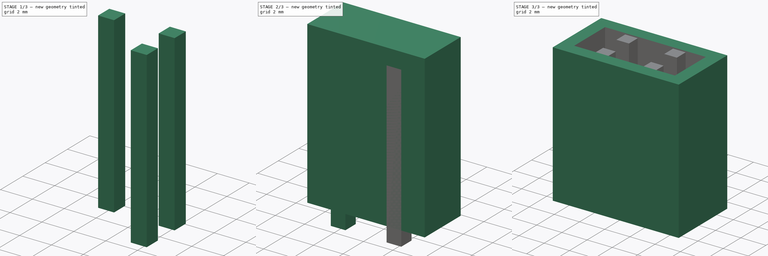
[diagram: build sequence overview — one tinted view per stage of 3, left to right]
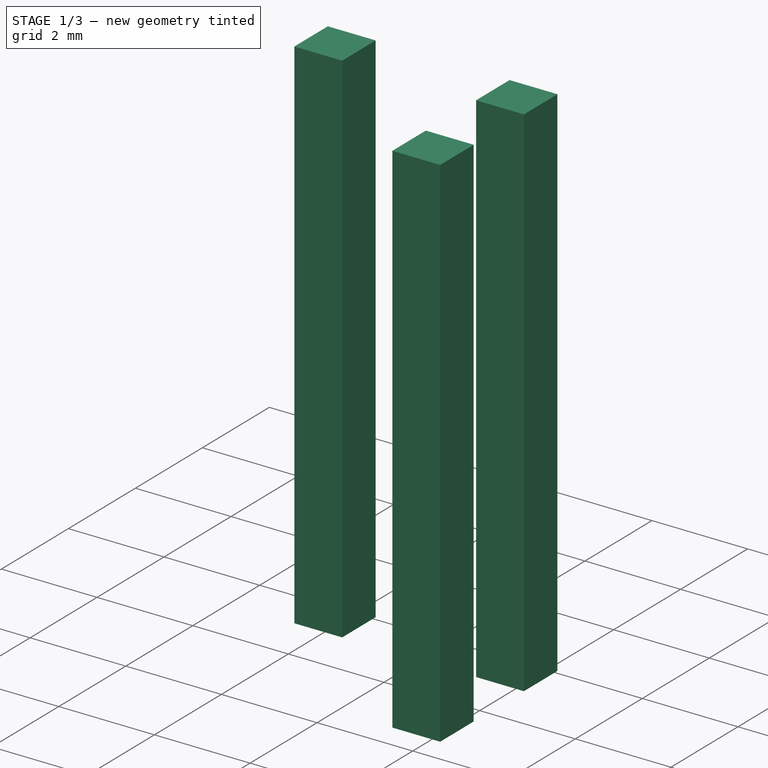
[diagram: stage 1 of 3 — iso view after this stage's code; geometry added in this stage tinted green]
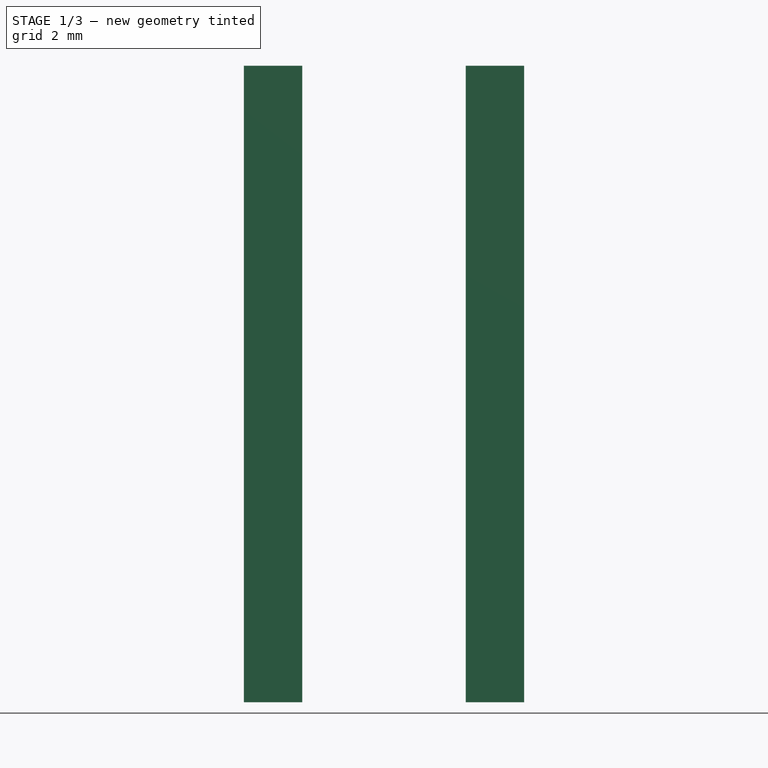
[diagram: stage 1 of 3 — front view after this stage's code; geometry added in this stage tinted green]
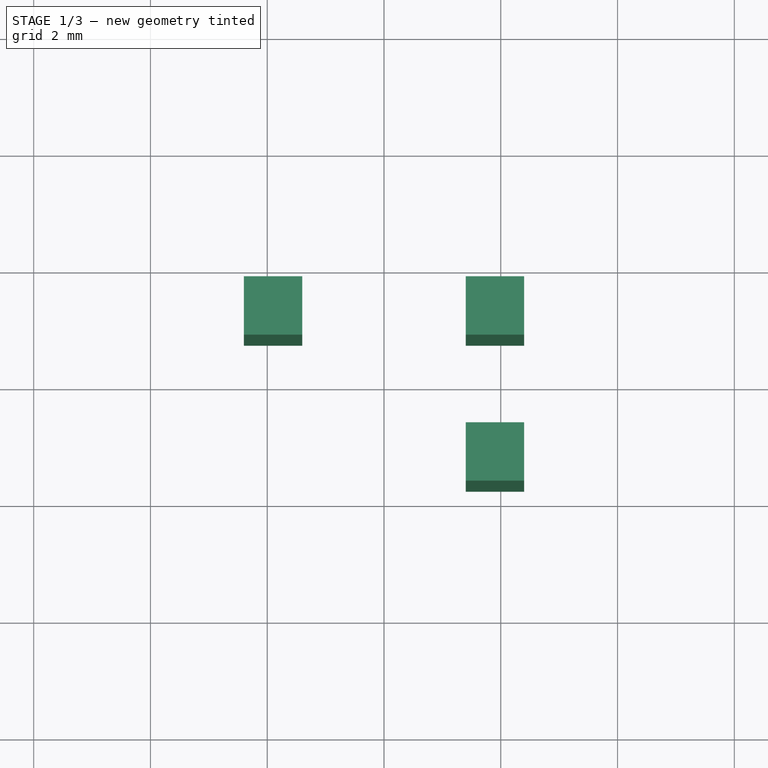
[diagram: stage 1 of 3 — top view after this stage's code; geometry added in this stage tinted green]
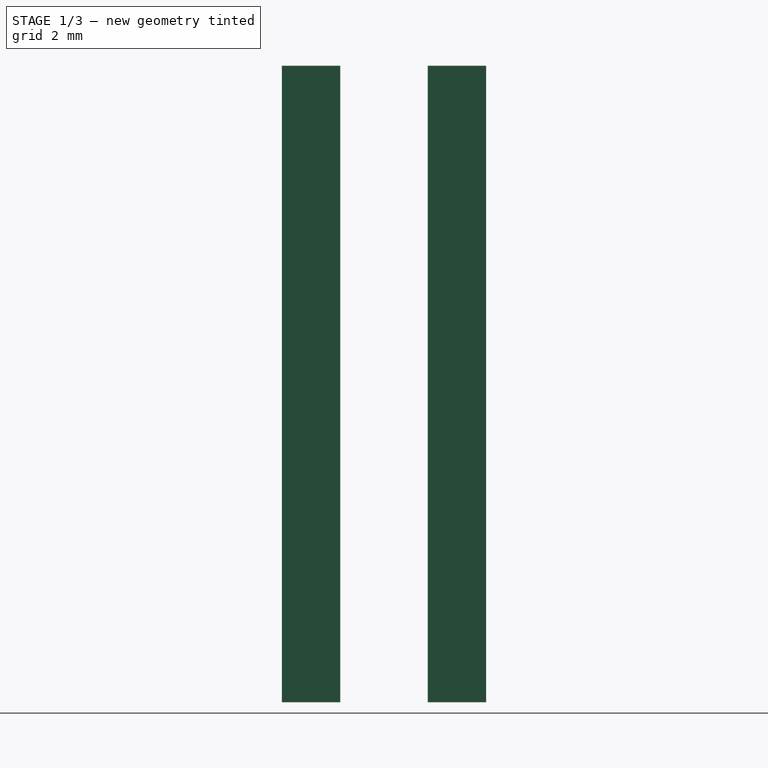
[diagram: stage 1 of 3 — right view after this stage's code; geometry added in this stage tinted green]
FCSTD DOCUMENT  (FreeCAD 0.19R24366 (Git))
Label: S1-94_button
License: All rights reserved
LicenseURL: http://en.wikipedia.org/wiki/All_rights_reserved
objects: Sketcher::SketchObject×6, PartDesign::Pad×6, PartDesign::Body×6, Part::Cut×1, Part::MultiFuse×1
note: 26 computed .brp shape members not serialized (recipe doc carries the construction recipe); baked Part::Feature solids carry a one-line shape summary decoded from their .brp

FEATURE [PartDesign::Body] Body003
  Group = -> [Sketch004,Pad003]
  Origin = -> Origin003
  Tip = -> Pad003
FEATURE [Sketcher::SketchObject] Sketch005
  FullyConstrained = true
  MapMode = 5
  Support = -> [XY_Plane004]
  sketch-geometry (4):
    g0: LineSegment StartX=1.4 StartY=1.75 StartZ=0 EndX=2.4 EndY=1.75 EndZ=0
    g1: LineSegment StartX=2.4 StartY=1.75 StartZ=0 EndX=2.4 EndY=0.75 EndZ=0
    g2: LineSegment StartX=2.4 StartY=0.75 StartZ=0 EndX=1.4 EndY=0.75 EndZ=0
    g3: LineSegment StartX=1.4 StartY=0.75 StartZ=0 EndX=1.4 EndY=1.75 EndZ=0
  constraints (12):
    c: Coincident(g0,g1)
    c: Coincident(g1,g2)
    c: Coincident(g2,g3)
    c: Coincident(g3,g0)
    c: Horizontal(g0)
    c: Horizontal(g2)
    c: Vertical(g1)
    c: Vertical(g3)
    c: Distance(g0) = 1
    c: Distance(g1) = 1
    c: DistanceX(g-2,g0) = 1.4
    c: DistanceY(g-1,g2) = 0.75
FEATURE [PartDesign::Pad] Pad004
  Direction = (1,1,1)
  Length = 10.9
  Length2 = 100
  Profile = -> Sketch005
  Type = 0
FEATURE [PartDesign::Body] Body004
  Group = -> [Sketch005,Pad004]
  Origin = -> Origin004
  Tip = -> Pad004
FEATURE [Sketcher::SketchObject] Sketch006
  FullyConstrained = true
  MapMode = 5
  Support = -> [XY_Plane005]
  sketch-geometry (4):
    g0: LineSegment StartX=1.4 StartY=-0.75 StartZ=0 EndX=2.4 EndY=-0.75 EndZ=0
    g1: LineSegment StartX=2.4 StartY=-0.75 StartZ=0 EndX=2.4 EndY=-1.75 EndZ=0
    g2: LineSegment StartX=2.4 StartY=-1.75 StartZ=0 EndX=1.4 EndY=-1.75 EndZ=0
    g3: LineSegment StartX=1.4 StartY=-1.75 StartZ=0 EndX=1.4 EndY=-0.75 EndZ=0
  constraints (12):
    c: Coincident(g0,g1)
    c: Coincident(g1,g2)
    c: Coincident(g2,g3)
    c: Coincident(g3,g0)
    c: Horizontal(g0)
    c: Horizontal(g2)
    c: Vertical(g1)
    c: Vertical(g3)
    c: Distance(g0) = 1
    c: Distance(g1) = 1
    c: DistanceY(g-1,g0) = -0.75
    c: DistanceX(g-2,g2) = 1.4
FEATURE [PartDesign::Pad] Pad005
  Direction = (1,1,1)
  Length = 10.9
  Length2 = 100
  Profile = -> Sketch006
  Type = 0
FEATURE [PartDesign::Body] Body005
  Group = -> [Sketch006,Pad005]
  Origin = -> Origin005
  Tip = -> Pad005
FEATURE [Sketcher::SketchObject] Sketch003
  FullyConstrained = true
  MapMode = 5
  Support = -> [XY_Plane002]
  sketch-geometry (4):
    g0: LineSegment StartX=-2.4 StartY=1.75 StartZ=0 EndX=-1.4 EndY=1.75 EndZ=0
    g1: LineSegment StartX=-1.4 StartY=1.75 StartZ=0 EndX=-1.4 EndY=0.75 EndZ=0
    g2: LineSegment StartX=-1.4 StartY=0.75 StartZ=0 EndX=-2.4 EndY=0.75 EndZ=0
    g3: LineSegment StartX=-2.4 StartY=0.75 StartZ=0 EndX=-2.4 EndY=1.75 EndZ=0
  constraints (12):
    c: Coincident(g0,g1)
    c: Coincident(g1,g2)
    c: Coincident(g2,g3)
    c: Coincident(g3,g0)
    c: Horizontal(g0)
    c: Horizontal(g2)
    c: Vertical(g1)
    c: Vertical(g3)
    c: Distance(g0) = 1
    c: Distance(g1) = 1
    c: DistanceX(g-2,g0) = -1.4
    c: DistanceY(g-1,g1) = 0.75
FEATURE [PartDesign::Pad] Pad002
  Direction = (1,1,1)
  Length = 10.9
  Length2 = 100
  Profile = -> Sketch003
  Type = 0
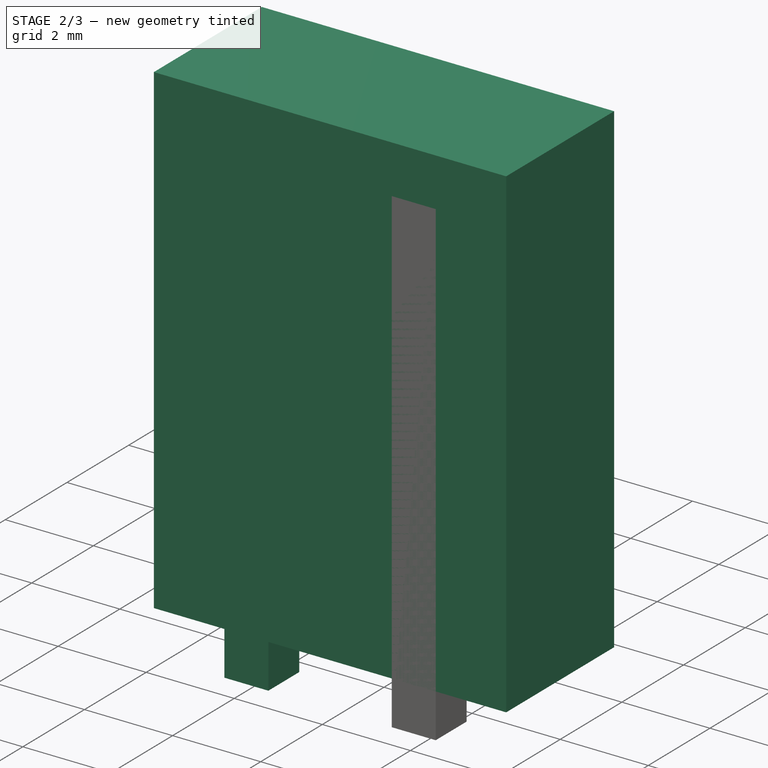
[diagram: stage 2 of 3 — iso view after this stage's code; geometry added in this stage tinted green]
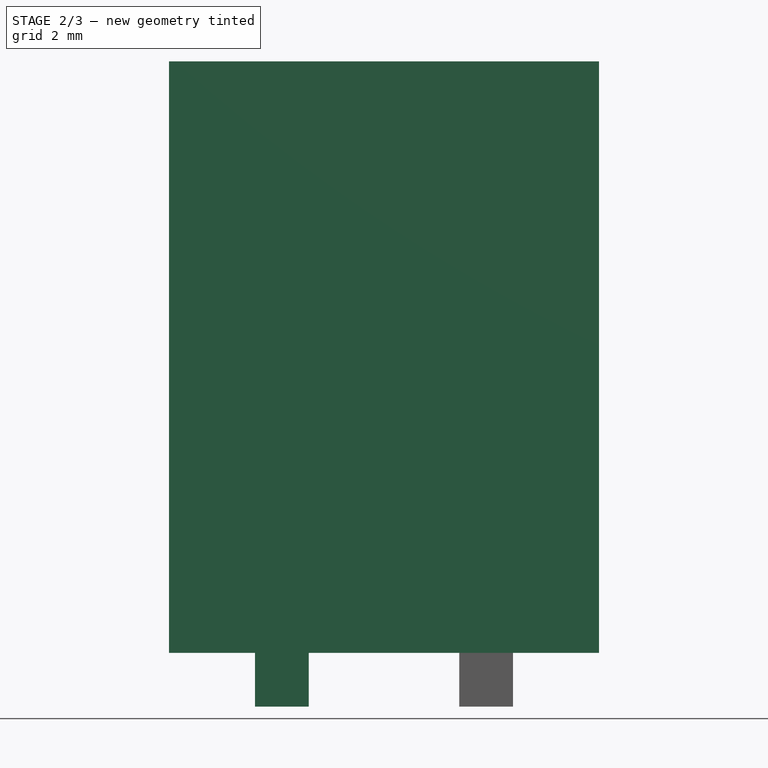
[diagram: stage 2 of 3 — front view after this stage's code; geometry added in this stage tinted green]
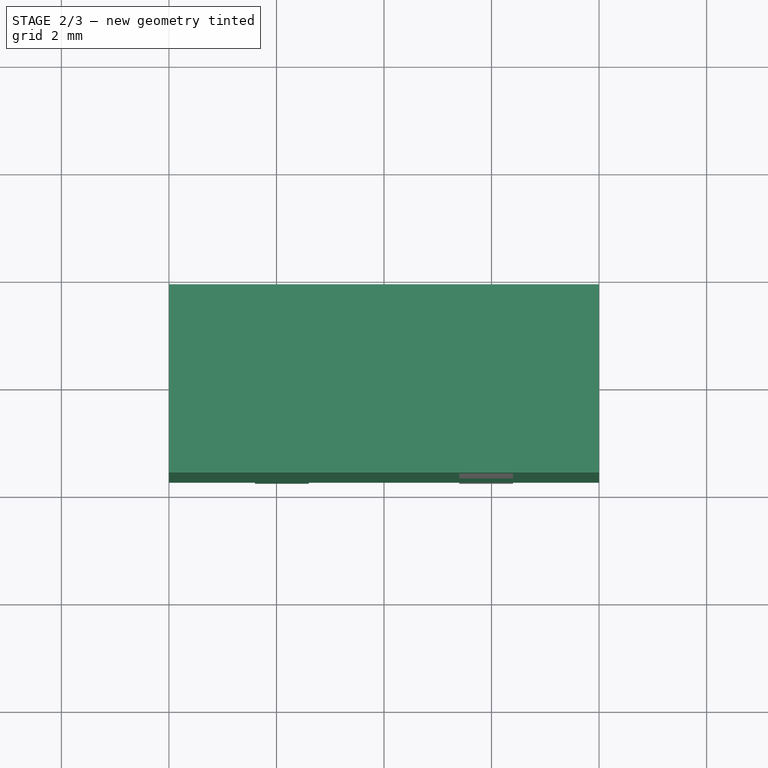
[diagram: stage 2 of 3 — top view after this stage's code; geometry added in this stage tinted green]
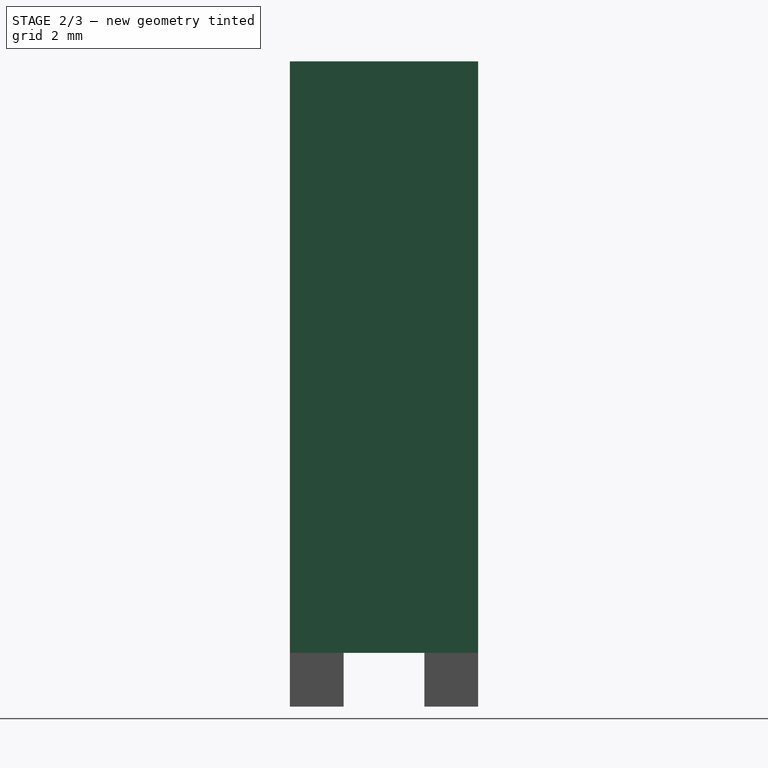
[diagram: stage 2 of 3 — right view after this stage's code; geometry added in this stage tinted green]
FEATURE [PartDesign::Body] Body
  Group = -> [Sketch,Pad]
  Origin = -> Origin
  Tip = -> Pad
FEATURE [Sketcher::SketchObject] Sketch001
  AttachmentOffset = pos=(0,0,1) rot=(0,0,1;0rad)
  FullyConstrained = true
  MapMode = 5
  Placement = pos=(0,0,1) rot=(0,0,1;0rad)
  Support = -> [XY_Plane001]
  sketch-geometry (4):
    g0: LineSegment StartX=-4 StartY=1.75 StartZ=0 EndX=4 EndY=1.75 EndZ=0
    g1: LineSegment StartX=4 StartY=1.75 StartZ=0 EndX=4 EndY=-1.75 EndZ=0
    g2: LineSegment StartX=4 StartY=-1.75 StartZ=0 EndX=-4 EndY=-1.75 EndZ=0
    g3: LineSegment StartX=-4 StartY=-1.75 StartZ=0 EndX=-4 EndY=1.75 EndZ=0
  constraints (10):
    c: Coincident(g0,g1)
    c: Coincident(g1,g2)
    c: Coincident(g2,g3)
    c: Coincident(g3,g0)
    c: Horizontal(g2)
    c: Vertical(g3)
    c: Distance(g0) = 8
    c: Distance(g1) = 3.5
    c: Symmetric(g0,g0,g-2)
    c: Symmetric(g0,g1,g-1)
FEATURE [PartDesign::Pad] Pad001
  Direction = (1,1,1)
  Length = 11
  Length2 = 100
  Profile = -> Sketch001
  Type = 0
FEATURE [Sketcher::SketchObject] Sketch004
  FullyConstrained = true
  MapMode = 5
  Support = -> [XY_Plane003]
  sketch-geometry (4):
    g0: LineSegment StartX=-2.4 StartY=-0.75 StartZ=0 EndX=-1.4 EndY=-0.75 EndZ=0
    g1: LineSegment StartX=-1.4 StartY=-0.75 StartZ=0 EndX=-1.4 EndY=-1.75 EndZ=0
    g2: LineSegment StartX=-1.4 StartY=-1.75 StartZ=0 EndX=-2.4 EndY=-1.75 EndZ=0
    g3: LineSegment StartX=-2.4 StartY=-1.75 StartZ=0 EndX=-2.4 EndY=-0.75 EndZ=0
  constraints (12):
    c: Coincident(g0,g1)
    c: Coincident(g1,g2)
    c: Coincident(g2,g3)
    c: Coincident(g3,g0)
    c: Horizontal(g0)
    c: Horizontal(g2)
    c: Vertical(g1)
    c: Vertical(g3)
    c: Distance(g0) = 1
    c: Distance(g1) = 1
    c: DistanceY(g-1,g0) = -0.75
    c: DistanceX(g-2,g1) = -1.4
FEATURE [PartDesign::Pad] Pad003
  Direction = (1,1,1)
  Length = 10.9
  Length2 = 100
  Profile = -> Sketch004
  Type = 0
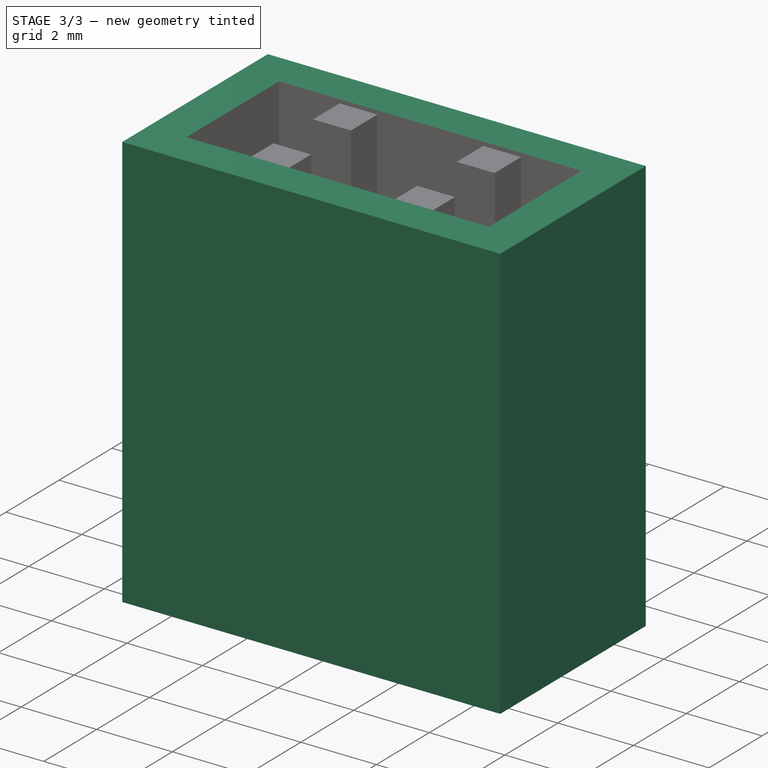
[diagram: stage 3 of 3 — iso view after this stage's code; geometry added in this stage tinted green]
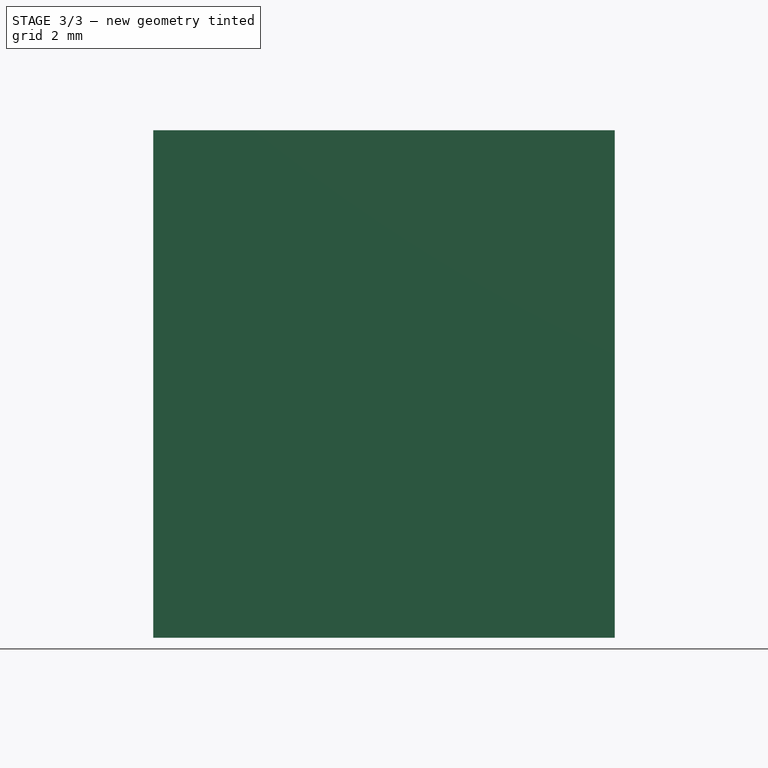
[diagram: stage 3 of 3 — front view after this stage's code; geometry added in this stage tinted green]
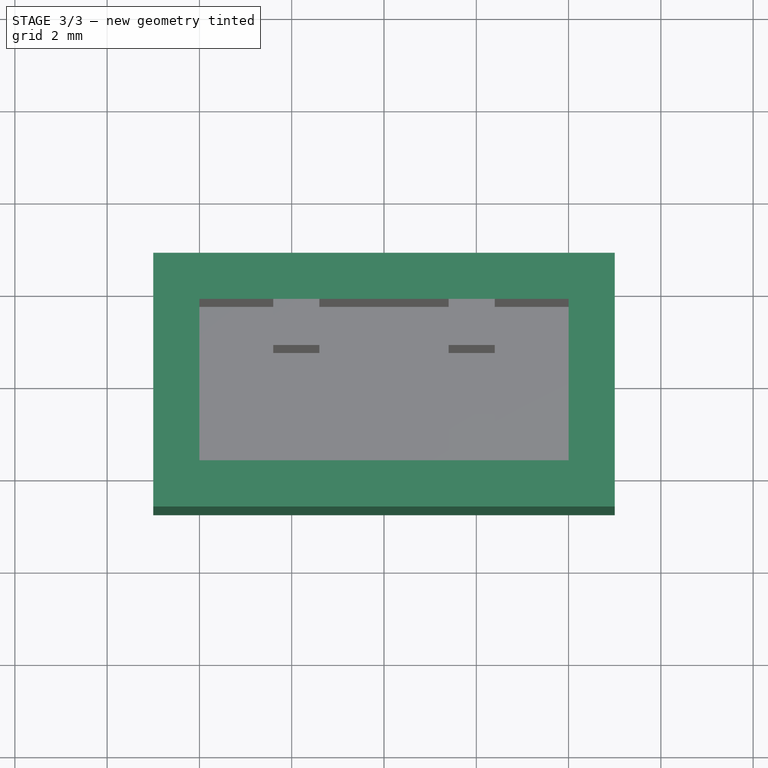
[diagram: stage 3 of 3 — top view after this stage's code; geometry added in this stage tinted green]
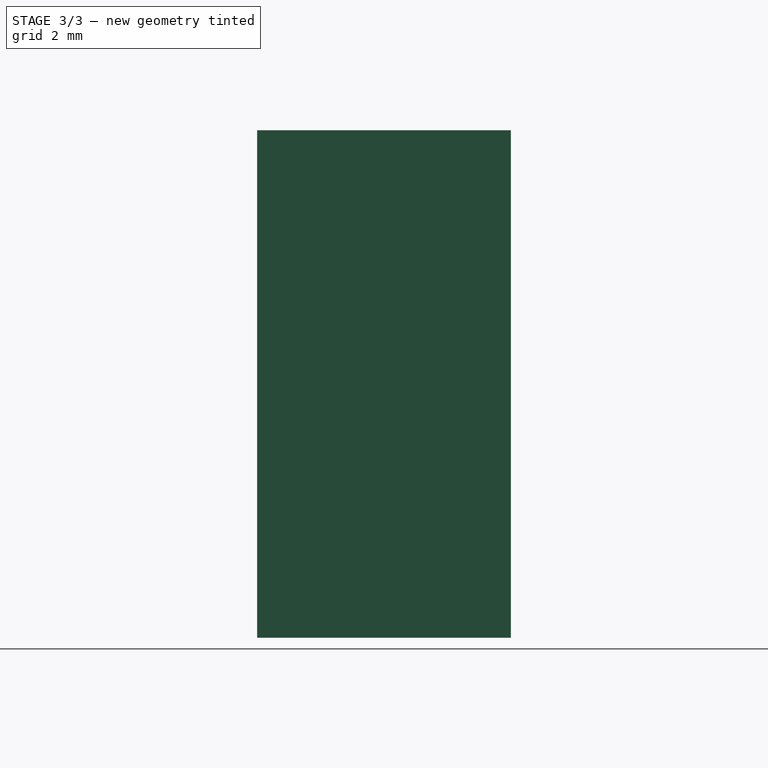
[diagram: stage 3 of 3 — right view after this stage's code; geometry added in this stage tinted green]
FEATURE [Sketcher::SketchObject] Sketch
  FullyConstrained = true
  MapMode = 5
  Support = -> [XY_Plane]
  sketch-geometry (4):
    g0: LineSegment StartX=-5 StartY=2.75 StartZ=0 EndX=5 EndY=2.75 EndZ=0
    g1: LineSegment StartX=5 StartY=2.75 StartZ=0 EndX=5 EndY=-2.75 EndZ=0
    g2: LineSegment StartX=5 StartY=-2.75 StartZ=0 EndX=-5 EndY=-2.75 EndZ=0
    g3: LineSegment StartX=-5 StartY=-2.75 StartZ=0 EndX=-5 EndY=2.75 EndZ=0
  constraints (10):
    c: Coincident(g0,g1)
    c: Coincident(g1,g2)
    c: Coincident(g2,g3)
    c: Coincident(g3,g0)
    c: Horizontal(g2)
    c: Vertical(g3)
    c: Distance(g0) = 10
    c: Distance(g1) = 5.5
    c: Symmetric(g0,g1,g-1)
    c: Symmetric(g0,g0,g-2)
FEATURE [PartDesign::Pad] Pad
  Direction = (1,1,1)
  Length = 11
  Length2 = 100
  Profile = -> Sketch
  Type = 0
FEATURE [PartDesign::Body] Body001
  Group = -> [Sketch001,Pad001]
  Origin = -> Origin001
  Tip = -> Pad001
FEATURE [Part::Cut] Cut
  Base = -> Pad
  Tool = -> Pad001
FEATURE [PartDesign::Body] Body002
  Group = -> [Sketch003,Pad002]
  Origin = -> Origin002
  Tip = -> Pad002
FEATURE [Part::MultiFuse] Fusion
  Shapes = -> [Cut,Body002,Body003,Body004,Body005]
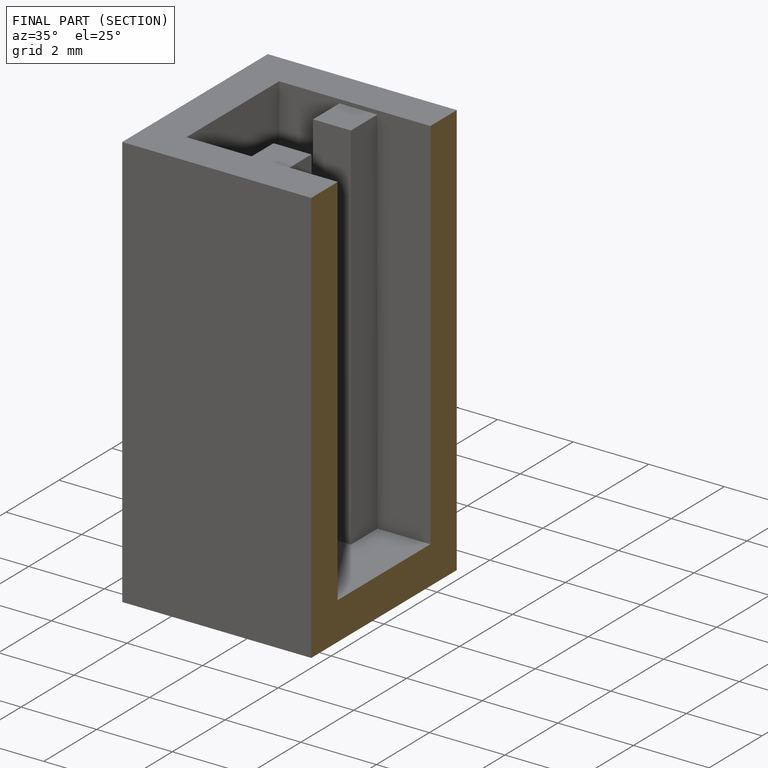
[diagram: finished part — half-section view (interior)]
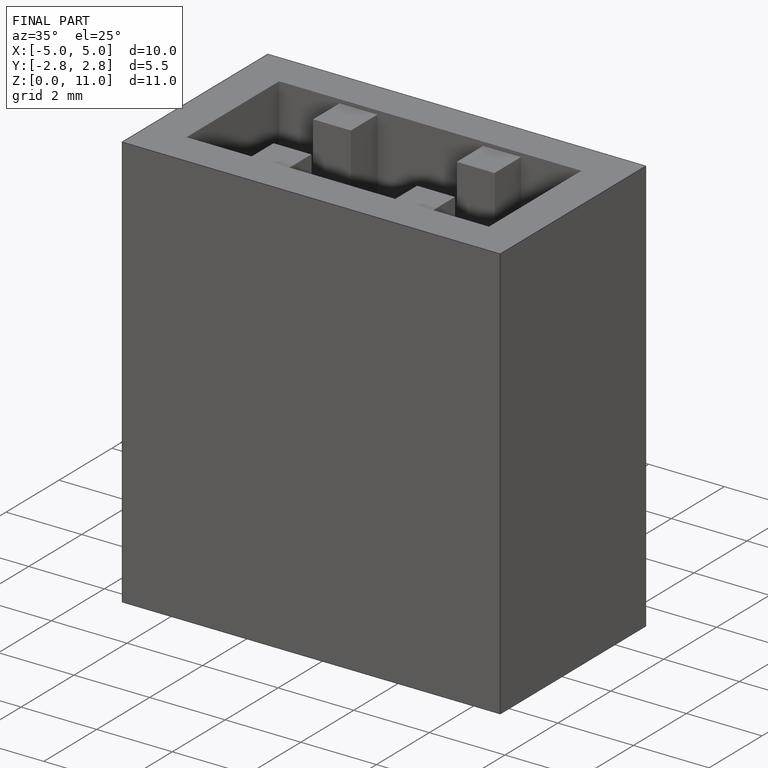
[diagram: finished part — iso view with bounding-box wireframe]
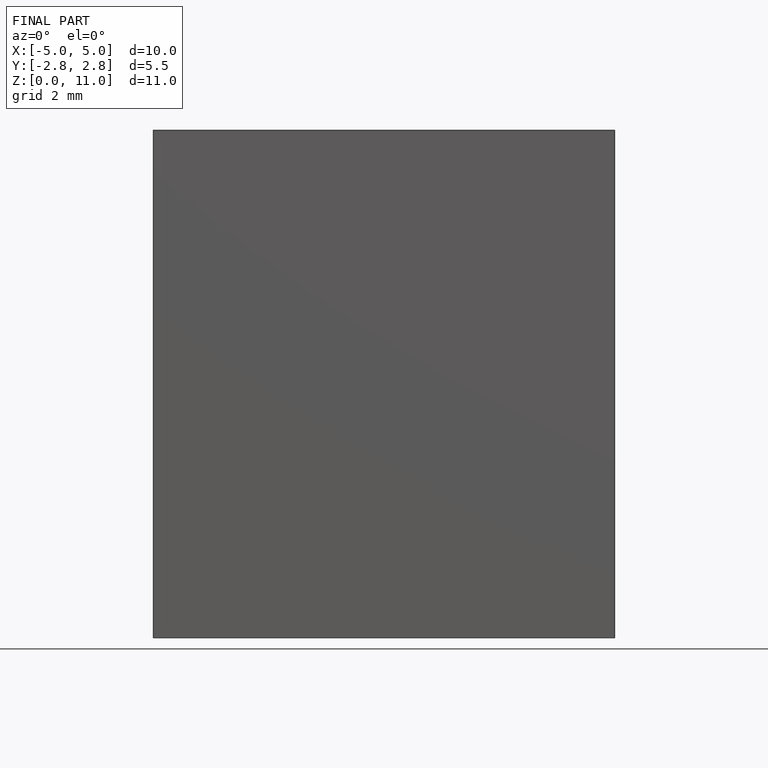
[diagram: finished part — front view with bounding-box wireframe]
